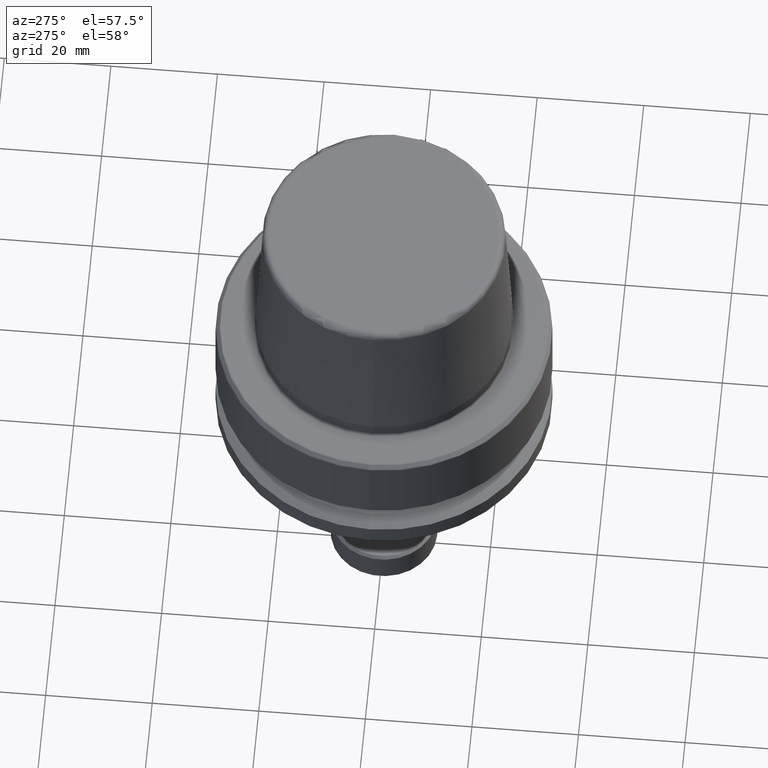
[diagram: clean part render]
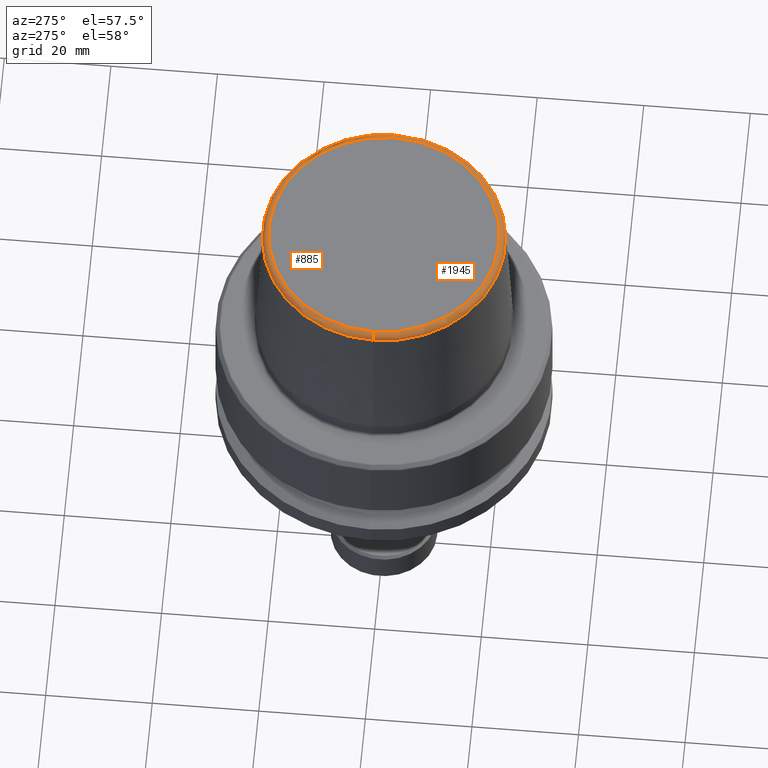
[diagram: same view with one multi-face feature highlighted, each face labeled with its STEP entity id]
A machine part, auxiliary view. The highlighted faces form ONE feature: a constant-radius fillet chain: 2 tangent blend faces with common blend radius 1.2 mm. The faces share edges in the B-rep.
Their STEP definitions:
[1] entity #1945 (Torus):
#35 = DIRECTION ( 'NONE',  ( -1.000000000000000000, 1.224646799147353200E-016, 0.0000000000000000000 ) ) ;
#51 = AXIS2_PLACEMENT_3D ( 'NONE', #2639, #1345, #35 ) ;
#61 = ORIENTED_EDGE ( 'NONE', *, *, #1540, .F. ) ;
#155 = AXIS2_PLACEMENT_3D ( 'NONE', #1774, #1078, #2000 ) ;
#220 = EDGE_CURVE ( 'NONE', #789, #391, #1947, .T. ) ;
#335 = CARTESIAN_POINT ( 'NONE',  ( 0.0000000000000000000, 0.0000000000000000000, 31.89999999999999900 ) ) ;
#340 = CARTESIAN_POINT ( 'NONE',  ( 21.58108272732117100, 0.0000000000000000000, 31.89999999999999900 ) ) ;
#362 = EDGE_CURVE ( 'NONE', #391, #1630, #2196, .T. ) ;
#391 = VERTEX_POINT ( 'NONE', #2075 ) ;
#401 = CARTESIAN_POINT ( 'NONE',  ( -22.77957961851797100, 0.0000000000000000000, 30.76004333261571900 ) ) ;
#450 = FACE_OUTER_BOUND ( 'NONE', #2175, .T. ) ;
#559 = DIRECTION ( 'NONE',  ( 1.000000000000000000, 0.0000000000000000000, 0.0000000000000000000 ) ) ;
#592 = ORIENTED_EDGE ( 'NONE', *, *, #362, .T. ) ;
#694 = VERTEX_POINT ( 'NONE', #2080 ) ;
#789 = VERTEX_POINT ( 'NONE', #401 ) ;
#821 = AXIS2_PLACEMENT_3D ( 'NONE', #1799, #1578, #921 ) ;
#921 = DIRECTION ( 'NONE',  ( 1.000000000000000000, 0.0000000000000000000, 0.0000000000000000000 ) ) ;
#1036 = TOROIDAL_SURFACE ( 'NONE', #821, 21.58108272732117100, 1.200000000000003100 ) ;
#1078 = DIRECTION ( 'NONE',  ( 0.0000000000000000000, -1.000000000000000000, 0.0000000000000000000 ) ) ;
#1144 = ORIENTED_EDGE ( 'NONE', *, *, #2524, .F. ) ;
#1229 = AXIS2_PLACEMENT_3D ( 'NONE', #335, #1868, #559 ) ;
#1345 = DIRECTION ( 'NONE',  ( 1.224646799147353200E-016, 1.000000000000000000, 0.0000000000000000000 ) ) ;
#1433 = CARTESIAN_POINT ( 'NONE',  ( 0.0000000000000000000, 0.0000000000000000000, 30.76004333261571900 ) ) ;
#1483 = CIRCLE ( 'NONE', #1229, 21.58108272732117100 ) ;
#1540 = EDGE_CURVE ( 'NONE', #694, #1630, #1483, .T. ) ;
#1578 = DIRECTION ( 'NONE',  ( -0.0000000000000000000, -0.0000000000000000000, 1.000000000000000000 ) ) ;
#1630 = VERTEX_POINT ( 'NONE', #340 ) ;
#1774 = CARTESIAN_POINT ( 'NONE',  ( 21.58108272732117100, 0.0000000000000000000, 30.69999999999999200 ) ) ;
#1799 = CARTESIAN_POINT ( 'NONE',  ( 0.0000000000000000000, 0.0000000000000000000, 30.69999999999999200 ) ) ;
#1868 = DIRECTION ( 'NONE',  ( -0.0000000000000000000, -0.0000000000000000000, 1.000000000000000000 ) ) ;
#1945 = ADVANCED_FACE ( 'NONE', ( #450 ), #1036, .T. ) ;
#1947 = CIRCLE ( 'NONE', #2112, 22.77957961851797100 ) ;
#2000 = DIRECTION ( 'NONE',  ( 0.0000000000000000000, 0.0000000000000000000, -1.000000000000000000 ) ) ;
#2075 = CARTESIAN_POINT ( 'NONE',  ( 22.77957961851797100, 2.874852597157249900E-015, 30.76004333261571900 ) ) ;
#2080 = CARTESIAN_POINT ( 'NONE',  ( -21.58108272732117100, 2.716307157494421400E-015, 31.89999999999999900 ) ) ;
#2112 = AXIS2_PLACEMENT_3D ( 'NONE', #1433, #2525, #2682 ) ;
#2175 = EDGE_LOOP ( 'NONE', ( #1144, #2193, #592, #61 ) ) ;
#2193 = ORIENTED_EDGE ( 'NONE', *, *, #220, .T. ) ;
#2196 = CIRCLE ( 'NONE', #155, 1.200000000000003100 ) ;
#2239 = CIRCLE ( 'NONE', #51, 1.200000000000003100 ) ;
#2524 = EDGE_CURVE ( 'NONE', #789, #694, #2239, .T. ) ;
#2525 = DIRECTION ( 'NONE',  ( -0.0000000000000000000, -0.0000000000000000000, 1.000000000000000000 ) ) ;
#2639 = CARTESIAN_POINT ( 'NONE',  ( -21.58108272732117100, 2.642920388414810300E-015, 30.69999999999999200 ) ) ;
#2682 = DIRECTION ( 'NONE',  ( 1.000000000000000000, 0.0000000000000000000, 0.0000000000000000000 ) ) ;
[2] entity #885 (Torus):
#35 = DIRECTION ( 'NONE',  ( -1.000000000000000000, 1.224646799147353200E-016, 0.0000000000000000000 ) ) ;
#51 = AXIS2_PLACEMENT_3D ( 'NONE', #2639, #1345, #35 ) ;
#155 = AXIS2_PLACEMENT_3D ( 'NONE', #1774, #1078, #2000 ) ;
#274 = ORIENTED_EDGE ( 'NONE', *, *, #2524, .T. ) ;
#340 = CARTESIAN_POINT ( 'NONE',  ( 21.58108272732117100, 0.0000000000000000000, 31.89999999999999900 ) ) ;
#362 = EDGE_CURVE ( 'NONE', #391, #1630, #2196, .T. ) ;
#391 = VERTEX_POINT ( 'NONE', #2075 ) ;
#401 = CARTESIAN_POINT ( 'NONE',  ( -22.77957961851797100, 0.0000000000000000000, 30.76004333261571900 ) ) ;
#407 = DIRECTION ( 'NONE',  ( -0.0000000000000000000, -0.0000000000000000000, 1.000000000000000000 ) ) ;
#563 = DIRECTION ( 'NONE',  ( -0.0000000000000000000, -0.0000000000000000000, 1.000000000000000000 ) ) ;
#656 = EDGE_CURVE ( 'NONE', #1630, #694, #2586, .T. ) ;
#694 = VERTEX_POINT ( 'NONE', #2080 ) ;
#789 = VERTEX_POINT ( 'NONE', #401 ) ;
#885 = ADVANCED_FACE ( 'NONE', ( #2487 ), #1908, .T. ) ;
#939 = CARTESIAN_POINT ( 'NONE',  ( 0.0000000000000000000, 0.0000000000000000000, 30.69999999999999200 ) ) ;
#1010 = DIRECTION ( 'NONE',  ( 1.000000000000000000, 0.0000000000000000000, 0.0000000000000000000 ) ) ;
#1078 = DIRECTION ( 'NONE',  ( 0.0000000000000000000, -1.000000000000000000, 0.0000000000000000000 ) ) ;
#1083 = CIRCLE ( 'NONE', #2047, 22.77957961851797100 ) ;
#1161 = DIRECTION ( 'NONE',  ( -0.0000000000000000000, -0.0000000000000000000, 1.000000000000000000 ) ) ;
#1237 = EDGE_CURVE ( 'NONE', #391, #789, #1083, .T. ) ;
#1345 = DIRECTION ( 'NONE',  ( 1.224646799147353200E-016, 1.000000000000000000, 0.0000000000000000000 ) ) ;
#1370 = AXIS2_PLACEMENT_3D ( 'NONE', #939, #1161, #1824 ) ;
#1477 = ORIENTED_EDGE ( 'NONE', *, *, #362, .F. ) ;
#1630 = VERTEX_POINT ( 'NONE', #340 ) ;
#1648 = CARTESIAN_POINT ( 'NONE',  ( 0.0000000000000000000, 0.0000000000000000000, 31.89999999999999900 ) ) ;
#1734 = CARTESIAN_POINT ( 'NONE',  ( 0.0000000000000000000, 0.0000000000000000000, 30.76004333261571900 ) ) ;
#1774 = CARTESIAN_POINT ( 'NONE',  ( 21.58108272732117100, 0.0000000000000000000, 30.69999999999999200 ) ) ;
#1824 = DIRECTION ( 'NONE',  ( 1.000000000000000000, 0.0000000000000000000, 0.0000000000000000000 ) ) ;
#1908 = TOROIDAL_SURFACE ( 'NONE', #1370, 21.58108272732117100, 1.200000000000003100 ) ;
#1942 = DIRECTION ( 'NONE',  ( 1.000000000000000000, 0.0000000000000000000, 0.0000000000000000000 ) ) ;
#1994 = AXIS2_PLACEMENT_3D ( 'NONE', #1648, #563, #1010 ) ;
#2000 = DIRECTION ( 'NONE',  ( 0.0000000000000000000, 0.0000000000000000000, -1.000000000000000000 ) ) ;
#2047 = AXIS2_PLACEMENT_3D ( 'NONE', #1734, #407, #1942 ) ;
#2075 = CARTESIAN_POINT ( 'NONE',  ( 22.77957961851797100, 2.874852597157249900E-015, 30.76004333261571900 ) ) ;
#2077 = EDGE_LOOP ( 'NONE', ( #2211, #274, #2384, #1477 ) ) ;
#2080 = CARTESIAN_POINT ( 'NONE',  ( -21.58108272732117100, 2.716307157494421400E-015, 31.89999999999999900 ) ) ;
#2196 = CIRCLE ( 'NONE', #155, 1.200000000000003100 ) ;
#2211 = ORIENTED_EDGE ( 'NONE', *, *, #1237, .T. ) ;
#2239 = CIRCLE ( 'NONE', #51, 1.200000000000003100 ) ;
#2384 = ORIENTED_EDGE ( 'NONE', *, *, #656, .F. ) ;
#2487 = FACE_OUTER_BOUND ( 'NONE', #2077, .T. ) ;
#2524 = EDGE_CURVE ( 'NONE', #789, #694, #2239, .T. ) ;
#2586 = CIRCLE ( 'NONE', #1994, 21.58108272732117100 ) ;
#2639 = CARTESIAN_POINT ( 'NONE',  ( -21.58108272732117100, 2.642920388414810300E-015, 30.69999999999999200 ) ) ;